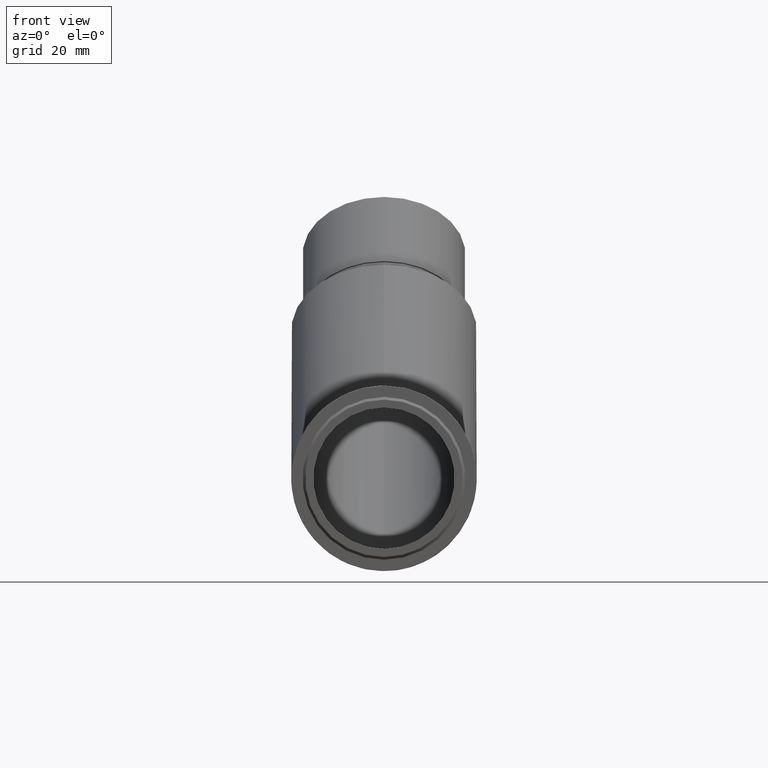
[diagram: clean part render]
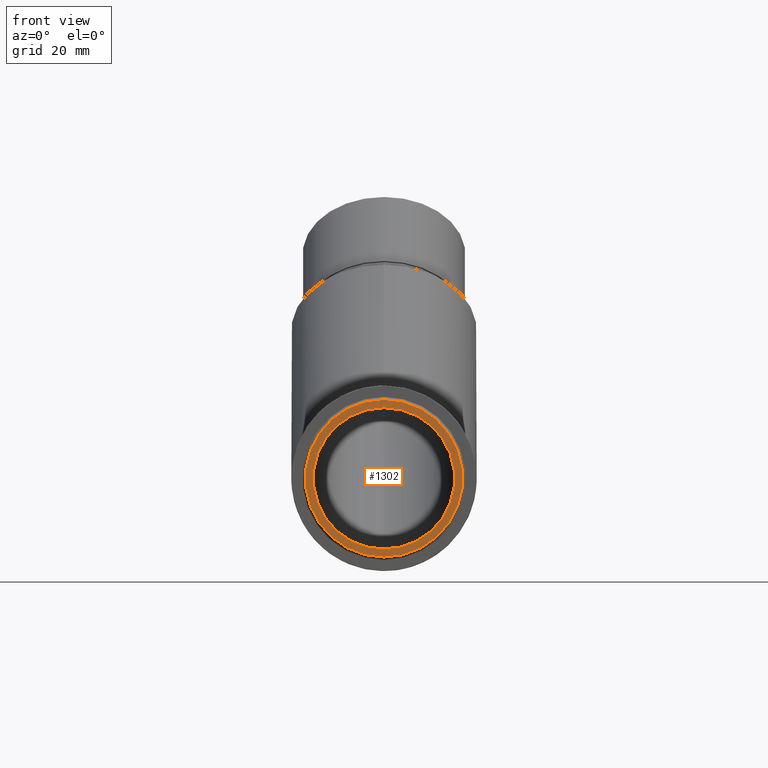
[diagram: same view with one face highlighted and labeled with its STEP entity id]
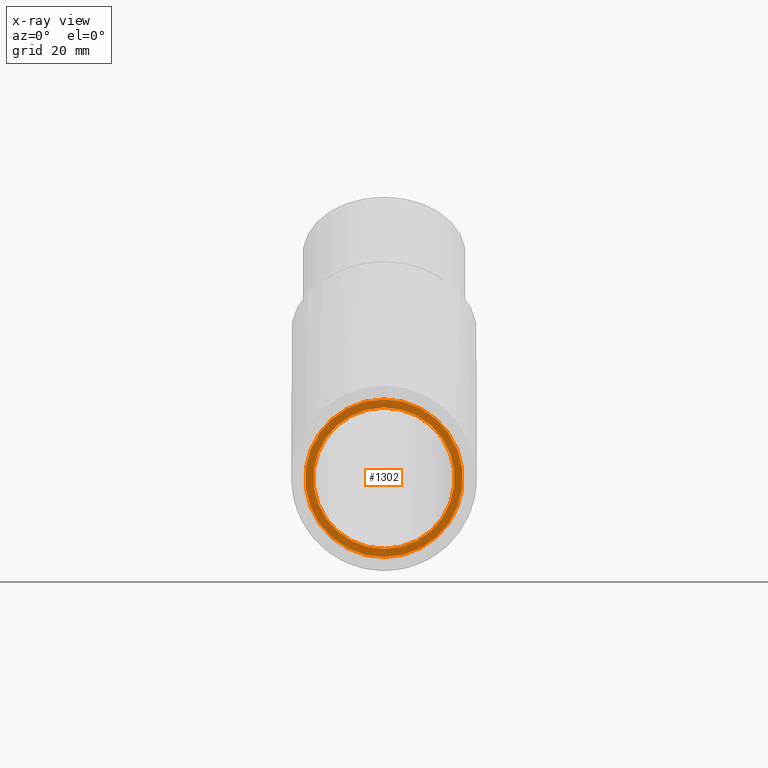
[diagram: x-ray of the same camera — body ghosted, the highlighted face saturated]
A machine part, front view. The second image highlights one B-rep face of the part: STEP entity #1302.
The next image is the same camera in x-ray: the body ghosted, the highlighted face saturated — about 0% of this face is hidden behind the body in this view.
In plain terms, the highlighted planar face has unit normal (0, -1, 0).
Its self-contained STEP definition (entity closure, byte-faithful):
#51 = CARTESIAN_POINT ( 'NONE',  ( 0.0000000000000000000, -20.00000000000000000, -14.29999999999999400 ) ) ;
#101 = VERTEX_POINT ( 'NONE', #51 ) ;
#280 = ORIENTED_EDGE ( 'NONE', *, *, #5316, .F. ) ;
#866 = CARTESIAN_POINT ( 'NONE',  ( 0.0000000000000000000, -20.00000000000000000, -12.85000000000000000 ) ) ;
#1302 = ADVANCED_FACE ( 'NONE', ( #8733, #6669 ), #5011, .T. ) ;
#1324 = ORIENTED_EDGE ( 'NONE', *, *, #10343, .T. ) ;
#1977 = DIRECTION ( 'NONE',  ( 0.0000000000000000000, 0.0000000000000000000, -1.000000000000000000 ) ) ;
#2154 = EDGE_LOOP ( 'NONE', ( #1324 ) ) ;
#2232 = CARTESIAN_POINT ( 'NONE',  ( 0.0000000000000000000, -20.00000000000000000, 0.0000000000000000000 ) ) ;
#2765 = DIRECTION ( 'NONE',  ( 0.0000000000000000000, -1.000000000000000000, 0.0000000000000000000 ) ) ;
#3982 = DIRECTION ( 'NONE',  ( 0.0000000000000000000, -0.0000000000000000000, -1.000000000000000000 ) ) ;
#4570 = DIRECTION ( 'NONE',  ( 0.0000000000000000000, 0.0000000000000000000, -1.000000000000000000 ) ) ;
#4944 = VERTEX_POINT ( 'NONE', #866 ) ;
#5011 = PLANE ( 'NONE',  #6746 ) ;
#5316 = EDGE_CURVE ( 'NONE', #4944, #4944, #11132, .T. ) ;
#5408 = DIRECTION ( 'NONE',  ( 0.0000000000000000000, -1.000000000000000000, 0.0000000000000000000 ) ) ;
#5468 = CIRCLE ( 'NONE', #5902, 14.29999999999999400 ) ;
#5902 = AXIS2_PLACEMENT_3D ( 'NONE', #8960, #2765, #4570 ) ;
#6669 = FACE_BOUND ( 'NONE', #11231, .T. ) ;
#6746 = AXIS2_PLACEMENT_3D ( 'NONE', #2232, #9291, #3982 ) ;
#8733 = FACE_OUTER_BOUND ( 'NONE', #2154, .T. ) ;
#8949 = CARTESIAN_POINT ( 'NONE',  ( 0.0000000000000000000, -20.00000000000000000, 0.0000000000000000000 ) ) ;
#8960 = CARTESIAN_POINT ( 'NONE',  ( 0.0000000000000000000, -20.00000000000000000, 0.0000000000000000000 ) ) ;
#9291 = DIRECTION ( 'NONE',  ( 0.0000000000000000000, -1.000000000000000000, 0.0000000000000000000 ) ) ;
#10343 = EDGE_CURVE ( 'NONE', #101, #101, #5468, .T. ) ;
#11132 = CIRCLE ( 'NONE', #11194, 12.85000000000000000 ) ;
#11194 = AXIS2_PLACEMENT_3D ( 'NONE', #8949, #5408, #1977 ) ;
#11231 = EDGE_LOOP ( 'NONE', ( #280 ) ) ;